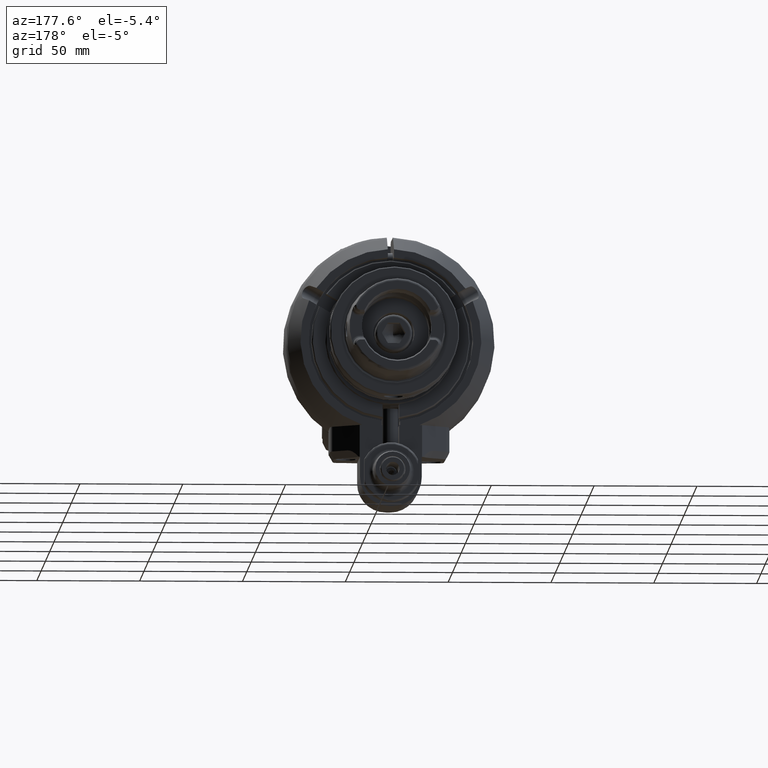
[diagram: clean part render]
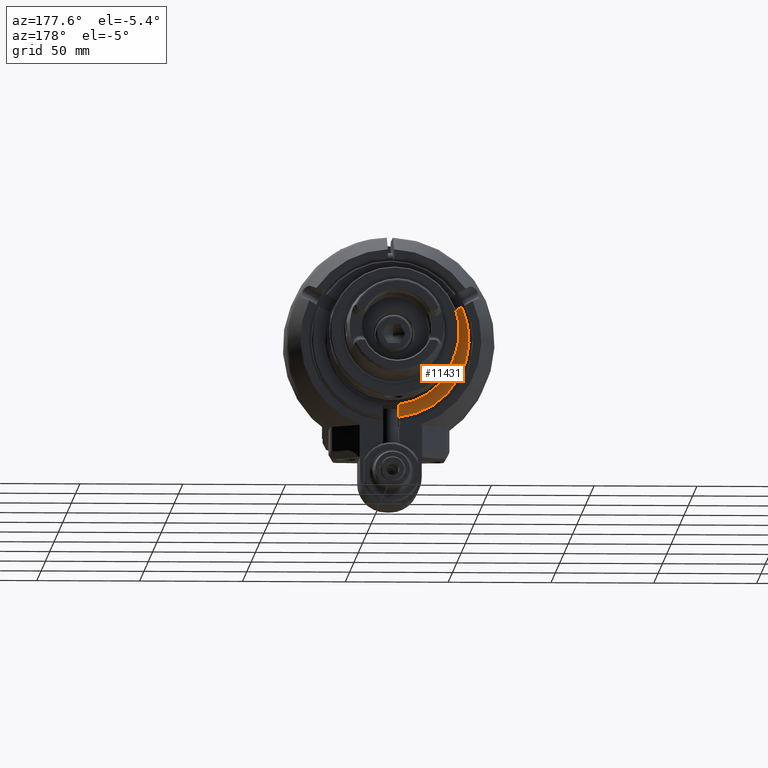
[diagram: same view with one face highlighted and labeled with its STEP entity id]
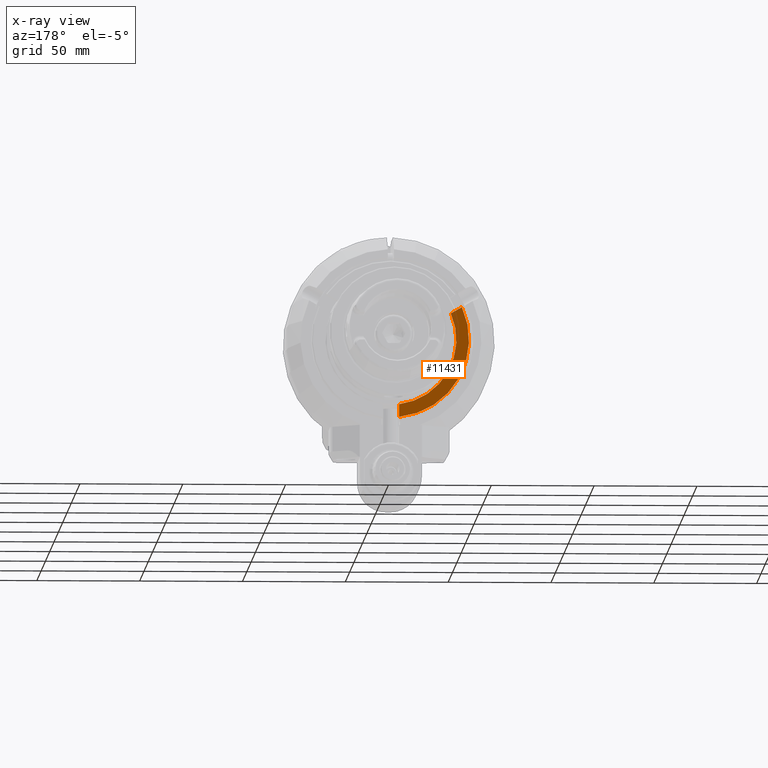
[diagram: x-ray of the same camera — body ghosted, the highlighted face saturated]
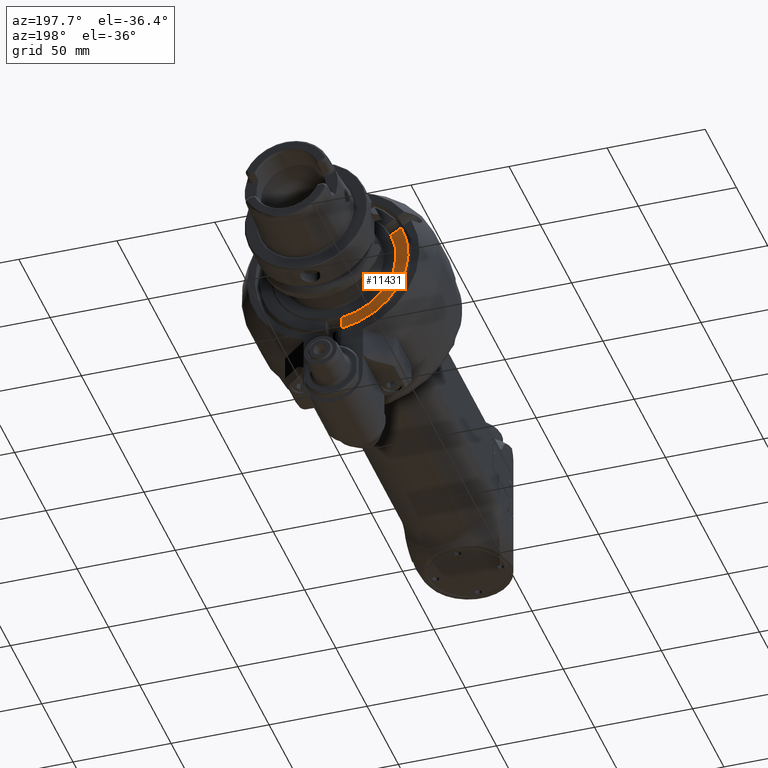
[diagram: same view with one face highlighted and labeled with its STEP entity id]
A machine part, auxiliary view. The second image highlights one B-rep face of the part: STEP entity #11431.
The next image is the same camera in x-ray: the body ghosted, the highlighted face saturated — about 8% of this face is hidden behind the body in this view.
A second angle (auxiliary view) of the same face is appended — the face is thin or edge-on in the first view.
In plain terms, the highlighted planar face has unit normal (0, 1, 0).
Its self-contained STEP definition (entity closure, byte-faithful):
#449=PLANE('',#12258);
#913=FACE_OUTER_BOUND('',#1557,.T.);
#1557=EDGE_LOOP('',(#8138,#8139,#8140,#8141));
#2261=CIRCLE('',#12233,31.85);
#2273=CIRCLE('',#12257,38.);
#2982=LINE('',#17386,#3880);
#2987=LINE('',#17409,#3885);
#3880=VECTOR('',#13681,10.);
#3885=VECTOR('',#13704,6.18136427850312);
#4820=VERTEX_POINT('',#17325);
#4821=VERTEX_POINT('',#17329);
#4836=VERTEX_POINT('',#17382);
#4842=VERTEX_POINT('',#17408);
#6122=EDGE_CURVE('',#4821,#4820,#2261,.T.);
#6146=EDGE_CURVE('',#4836,#4820,#2982,.T.);
#6157=EDGE_CURVE('',#4842,#4821,#2987,.T.);
#6159=EDGE_CURVE('',#4836,#4842,#2273,.T.);
#8138=ORIENTED_EDGE('',*,*,#6159,.T.);
#8139=ORIENTED_EDGE('',*,*,#6157,.T.);
#8140=ORIENTED_EDGE('',*,*,#6122,.T.);
#8141=ORIENTED_EDGE('',*,*,#6146,.F.);
#11431=ADVANCED_FACE('',(#913),#449,.T.);
#12233=AXIS2_PLACEMENT_3D('',#17330,#13641,#13642);
#12257=AXIS2_PLACEMENT_3D('',#17414,#13707,#13708);
#12258=AXIS2_PLACEMENT_3D('',#17415,#13709,#13710);
#13641=DIRECTION('center_axis',(0.,0.,-1.));
#13642=DIRECTION('ref_axis',(0.401804244584601,-0.915725586097603,0.));
#13681=DIRECTION('',(1.,0.,0.));
#13704=DIRECTION('',(-0.50000000000079,0.866025403783983,0.));
#13707=DIRECTION('center_axis',(0.,0.,1.));
#13708=DIRECTION('ref_axis',(-0.994444401457434,-0.105263157894704,0.));
#13709=DIRECTION('center_axis',(0.,0.,1.));
#13710=DIRECTION('ref_axis',(0.,-1.,0.));
#17325=CARTESIAN_POINT('',(-31.5978242914318,-4.0000000001257,6.99500000030091));
#17329=CARTESIAN_POINT('',(12.79746519002,-29.16585991721,6.995));
#17330=CARTESIAN_POINT('Origin',(0.,-1.347111479062E-14,6.995));
#17382=CARTESIAN_POINT('',(-37.78888725538,-4.,6.995));
#17386=CARTESIAN_POINT('',(-39.125,-4.,6.995));
#17408=CARTESIAN_POINT('',(15.88814732928,-34.51907841244,6.995));
#17409=CARTESIAN_POINT('',(15.88814732928,-34.51907841244,6.995));
#17414=CARTESIAN_POINT('Origin',(0.,-1.347111479062E-14,6.995));
#17415=CARTESIAN_POINT('Origin',(-31.75,0.,6.995));